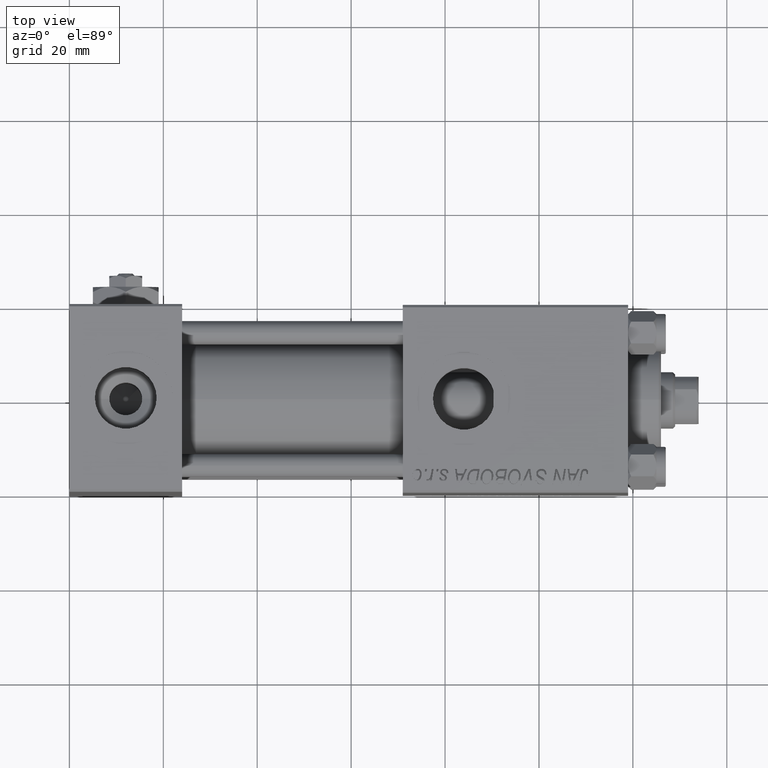
[diagram: clean part render]
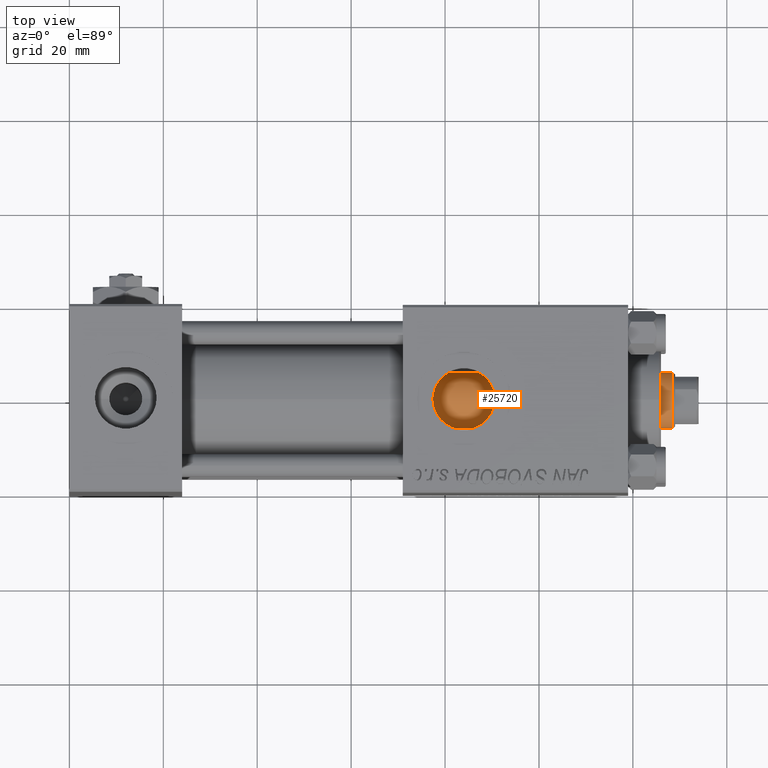
[diagram: same view with one face highlighted and labeled with its STEP entity id]
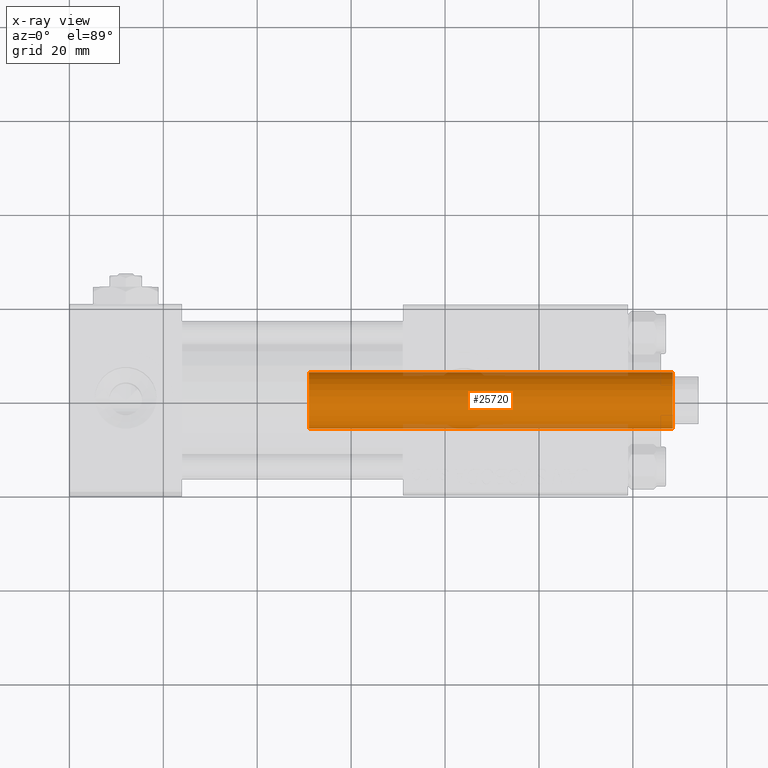
[diagram: x-ray of the same camera — body ghosted, the highlighted face saturated]
A machine part, top view. The second image highlights one B-rep face of the part: STEP entity #25720.
The next image is the same camera in x-ray: the body ghosted, the highlighted face saturated — about 8% of this face is hidden behind the body in this view.
In plain terms, the highlighted cylindrical surface (edge-blend (fillet) strip) has radius 6 mm, axis along (-1, 0, 0).
Its self-contained STEP definition (entity closure, byte-faithful):
#4391 = FACE_OUTER_BOUND ( 'NONE', #21016, .T. ) ;
#5365 = VERTEX_POINT ( 'NONE', #16020 ) ;
#8311 = ORIENTED_EDGE ( 'NONE', *, *, #24910, .T. ) ;
#9246 = AXIS2_PLACEMENT_3D ( 'NONE', #12238, #28696, #28173 ) ;
#9621 = EDGE_CURVE ( 'NONE', #22086, #21627, #28257, .T. ) ;
#9724 = VERTEX_POINT ( 'NONE', #38054 ) ;
#11395 = DIRECTION ( 'NONE',  ( 0.000000000000000000, 0.000000000000000000, -1.000000000000000000 ) ) ;
#11964 = DIRECTION ( 'NONE',  ( 0.000000000000000000, 0.000000000000000000, 1.000000000000000000 ) ) ;
#12069 = ORIENTED_EDGE ( 'NONE', *, *, #9621, .T. ) ;
#12238 = CARTESIAN_POINT ( 'NONE',  ( 0.000000000000000000, 0.000000000000000000, 105.0000000000000000 ) ) ;
#12547 = AXIS2_PLACEMENT_3D ( 'NONE', #47444, #11964, #48496 ) ;
#13440 = EDGE_CURVE ( 'NONE', #22086, #5365, #47902, .T. ) ;
#14796 = CARTESIAN_POINT ( 'NONE',  ( 0.000000000000000000, 0.000000000000000000, 104.5000000000000142 ) ) ;
#16020 = CARTESIAN_POINT ( 'NONE',  ( 6.000000000000000888, 7.347880794884120722E-16, 27.00000000000000000 ) ) ;
#20333 = CYLINDRICAL_SURFACE ( 'NONE', #9246, 6.000000000000000888 ) ;
#21016 = EDGE_LOOP ( 'NONE', ( #31735, #12069, #28740, #8311 ) ) ;
#21266 = CARTESIAN_POINT ( 'NONE',  ( -6.000000000000000888, 0.000000000000000000, 104.5000000000000142 ) ) ;
#21627 = VERTEX_POINT ( 'NONE', #21266 ) ;
#22086 = VERTEX_POINT ( 'NONE', #49104 ) ;
#24910 = EDGE_CURVE ( 'NONE', #9724, #5365, #35028, .T. ) ;
#25720 = ADVANCED_FACE ( 'NONE', ( #4391 ), #20333, .T. ) ;
#26711 = VECTOR ( 'NONE', #35990, 1000.000000000000000 ) ;
#27645 = CARTESIAN_POINT ( 'NONE',  ( -6.000000000000000888, 0.000000000000000000, 105.0000000000000000 ) ) ;
#28173 = DIRECTION ( 'NONE',  ( -1.000000000000000000, 0.000000000000000000, 0.000000000000000000 ) ) ;
#28257 = CIRCLE ( 'NONE', #29921, 6.000000000000000888 ) ;
#28696 = DIRECTION ( 'NONE',  ( -0.000000000000000000, -0.000000000000000000, -1.000000000000000000 ) ) ;
#28740 = ORIENTED_EDGE ( 'NONE', *, *, #29968, .T. ) ;
#29921 = AXIS2_PLACEMENT_3D ( 'NONE', #14796, #11395, #42717 ) ;
#29968 = EDGE_CURVE ( 'NONE', #21627, #9724, #51342, .T. ) ;
#31735 = ORIENTED_EDGE ( 'NONE', *, *, #13440, .F. ) ;
#35028 = CIRCLE ( 'NONE', #12547, 6.000000000000000888 ) ;
#35990 = DIRECTION ( 'NONE',  ( -0.000000000000000000, -0.000000000000000000, -1.000000000000000000 ) ) ;
#36441 = DIRECTION ( 'NONE',  ( -0.000000000000000000, -0.000000000000000000, -1.000000000000000000 ) ) ;
#37541 = VECTOR ( 'NONE', #36441, 1000.000000000000000 ) ;
#38054 = CARTESIAN_POINT ( 'NONE',  ( -6.000000000000000888, 0.000000000000000000, 27.00000000000000000 ) ) ;
#42717 = DIRECTION ( 'NONE',  ( 1.000000000000000000, 0.000000000000000000, 0.000000000000000000 ) ) ;
#47444 = CARTESIAN_POINT ( 'NONE',  ( 0.000000000000000000, 0.000000000000000000, 27.00000000000000000 ) ) ;
#47902 = LINE ( 'NONE', #48685, #37541 ) ;
#48496 = DIRECTION ( 'NONE',  ( 1.000000000000000000, 0.000000000000000000, 0.000000000000000000 ) ) ;
#48685 = CARTESIAN_POINT ( 'NONE',  ( 6.000000000000000888, 7.347880794884120722E-16, 105.0000000000000000 ) ) ;
#49104 = CARTESIAN_POINT ( 'NONE',  ( 6.000000000000000888, 7.347880794884120722E-16, 104.5000000000000142 ) ) ;
#51342 = LINE ( 'NONE', #27645, #26711 ) ;